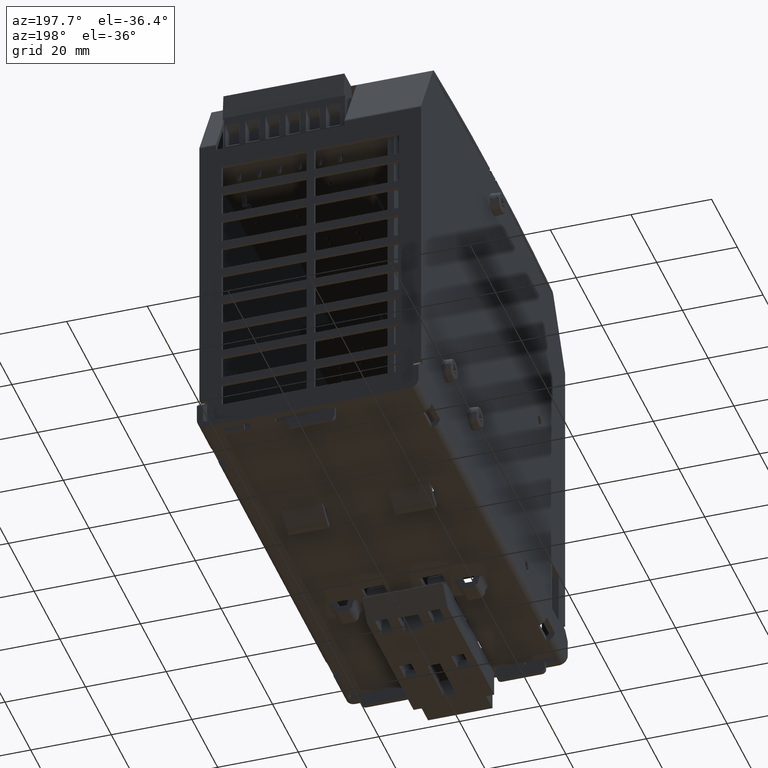
[diagram: clean part render]
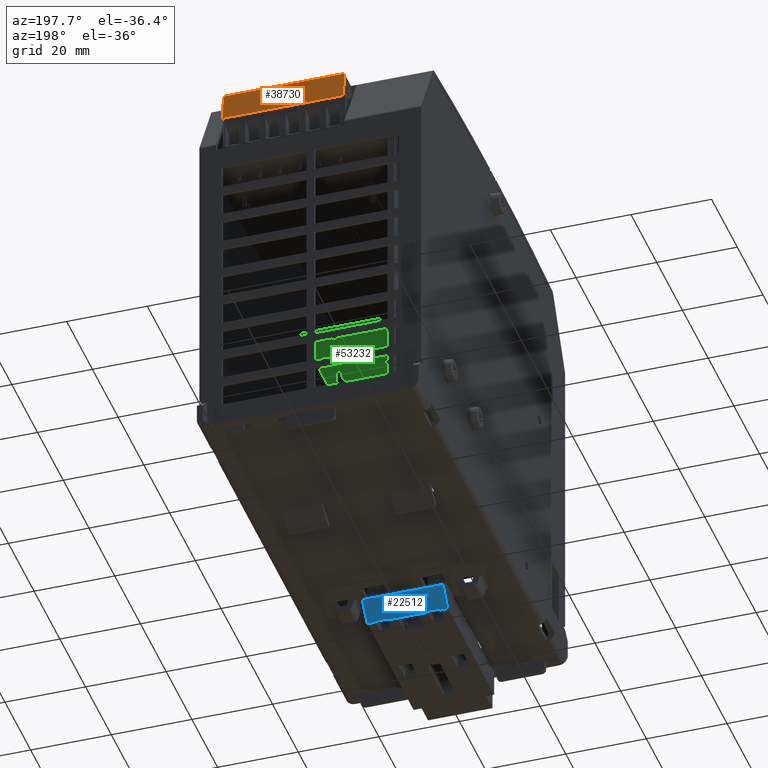
[diagram: same view with three faces highlighted in distinct colors, each labeled with its STEP entity id]
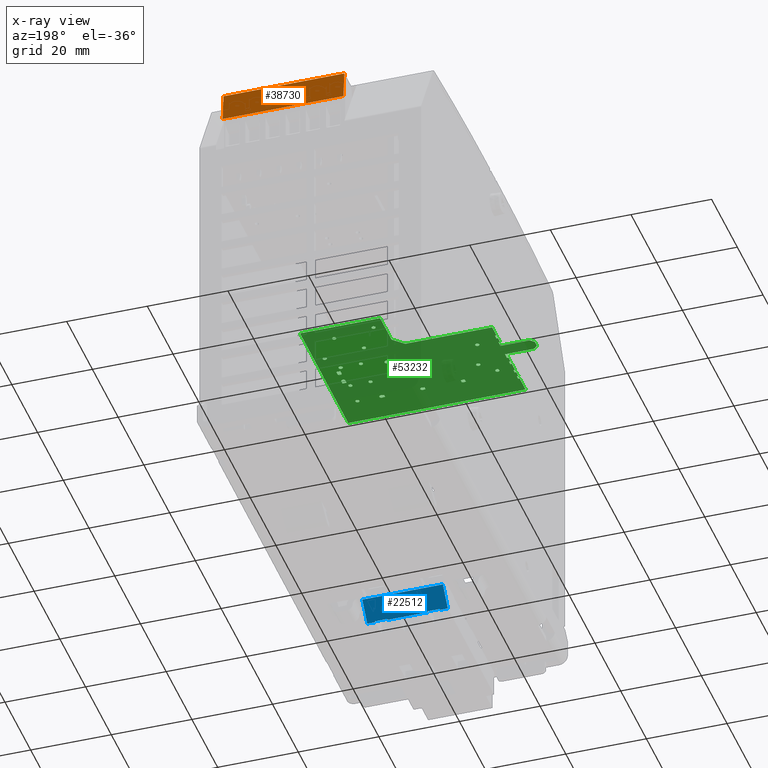
[diagram: x-ray of the same camera — body ghosted, the three highlighted faces saturated]
A machine part, auxiliary view with three faces highlighted in distinct colors.
The next image is the same camera in x-ray (body ghosted, the three faces saturated) — at least one of them is partly hidden behind the body in this view.
Their STEP definitions:

[orange] entity #38730 — the highlighted planar face has unit normal (0, 0.9962, 0.0872).
#29926=CARTESIAN_POINT('',(-0.274338582677101,2.022410649171889,3.980732283464571));
#29927=VERTEX_POINT('',#29926);
#29934=CARTESIAN_POINT('',(-0.274338582677101,2.046866141732283,3.701204724409452));
#29935=VERTEX_POINT('',#29934);
#29936=CARTESIAN_POINT('',(-0.274338582677101,2.022410649171889,3.980732283464571));
#29937=DIRECTION('',(0.0,0.087155742747651,-0.996194698091746));
#29938=VECTOR('',#29937,0.280595308919597);
#29939=LINE('',#29936,#29938);
#29940=EDGE_CURVE('',#29927,#29935,#29939,.T.);
#33165=CARTESIAN_POINT('',(0.887078740157544,2.046866141732282,3.701204724409452));
#33166=VERTEX_POINT('',#33165);
#33167=CARTESIAN_POINT('',(-0.274338582677101,2.046866141732282,3.701204724409452));
#33168=DIRECTION('',(1.0,0.0,0.0));
#33169=VECTOR('',#33168,1.161417322834645);
#33170=LINE('',#33167,#33169);
#33171=EDGE_CURVE('',#29935,#33166,#33170,.T.);
#38533=CARTESIAN_POINT('',(0.906763779527623,2.046866141732282,3.701204724409452));
#38534=VERTEX_POINT('',#38533);
#38541=CARTESIAN_POINT('',(0.906763779527623,2.022410649171889,3.980732283464569));
#38542=VERTEX_POINT('',#38541);
#38543=CARTESIAN_POINT('',(0.906763779527623,2.022410649171889,3.980732283464569));
#38544=DIRECTION('',(0.0,0.087155742747651,-0.996194698091746));
#38545=VECTOR('',#38544,0.280595308919597);
#38546=LINE('',#38543,#38545);
#38547=EDGE_CURVE('',#38542,#38534,#38546,.T.);
#38689=CARTESIAN_POINT('',(0.906763779527623,2.046866141732282,3.701204724409452));
#38690=DIRECTION('',(-1.0,0.0,0.0));
#38691=VECTOR('',#38690,0.019685039370079);
#38692=LINE('',#38689,#38691);
#38693=EDGE_CURVE('',#38534,#33166,#38692,.T.);
#38713=CARTESIAN_POINT('',(0.906763779527623,2.046866141732282,3.701204724409452));
#38714=DIRECTION('',(0.0,0.996194698091745,0.087155742747664));
#38715=DIRECTION('',(-1.0,0.0,0.0));
#38716=AXIS2_PLACEMENT_3D('',#38713,#38714,#38715);
#38717=PLANE('',#38716);
#38718=ORIENTED_EDGE('',*,*,#38693,.T.);
#38719=ORIENTED_EDGE('',*,*,#33171,.F.);
#38720=ORIENTED_EDGE('',*,*,#29940,.F.);
#38721=CARTESIAN_POINT('',(-0.274338582677101,2.022410649171889,3.980732283464569));
#38722=DIRECTION('',(1.0,0.0,0.0));
#38723=VECTOR('',#38722,1.181102362204725);
#38724=LINE('',#38721,#38723);
#38725=EDGE_CURVE('',#29927,#38542,#38724,.T.);
#38726=ORIENTED_EDGE('',*,*,#38725,.T.);
#38727=ORIENTED_EDGE('',*,*,#38547,.T.);
#38728=EDGE_LOOP('',(#38718,#38719,#38720,#38726,#38727));
#38729=FACE_OUTER_BOUND('',#38728,.T.);
#38730=ADVANCED_FACE('',(#38729),#38717,.T.);

[blue] entity #22512 — the highlighted planar face has unit normal (0, -0.7431, 0.6691).
#21663=CARTESIAN_POINT('',(0.393700787401574,-0.773622047244094,-0.267716535433069));
#21664=VERTEX_POINT('',#21663);
#21671=CARTESIAN_POINT('',(0.393700787401574,-0.62007874015748,-0.097189417014413));
#21672=VERTEX_POINT('',#21671);
#21673=CARTESIAN_POINT('',(0.393700787401574,-0.773622047244094,-0.267716535433069));
#21674=DIRECTION('',(0.0,0.669130606358859,0.743144825477394));
#21675=VECTOR('',#21674,0.229466871829606);
#21676=LINE('',#21673,#21675);
#21677=EDGE_CURVE('',#21664,#21672,#21676,.T.);
#21992=CARTESIAN_POINT('',(-0.393700787401576,-0.62007874015748,-0.097189417014413));
#21993=VERTEX_POINT('',#21992);
#22001=CARTESIAN_POINT('',(-0.393700787401576,-0.773622047244094,-0.267716535433069));
#22002=VERTEX_POINT('',#22001);
#22003=CARTESIAN_POINT('',(-0.393700787401576,-0.62007874015748,-0.097189417014413));
#22004=DIRECTION('',(0.0,-0.669130606358859,-0.743144825477394));
#22005=VECTOR('',#22004,0.229466871829606);
#22006=LINE('',#22003,#22005);
#22007=EDGE_CURVE('',#21993,#22002,#22006,.T.);
#22423=CARTESIAN_POINT('',(0.393700787401574,-0.62007874015748,-0.097189417014413));
#22424=DIRECTION('',(-1.0,0.0,0.0));
#22425=VECTOR('',#22424,0.78740157480315);
#22426=LINE('',#22423,#22425);
#22427=EDGE_CURVE('',#21672,#21993,#22426,.T.);
#22432=CARTESIAN_POINT('',(0.393700787401574,-0.62007874015748,-0.097189417014413));
#22433=DIRECTION('',(5.500377E-017,-0.743144825477395,0.669130606358858));
#22434=DIRECTION('',(0.0,0.669130606358858,0.743144825477395));
#22435=AXIS2_PLACEMENT_3D('',#22432,#22433,#22434);
#22436=PLANE('',#22435);
#22437=CARTESIAN_POINT('',(-0.196850393700789,-0.76771653543307,-0.261157800109275));
#22438=VERTEX_POINT('',#22437);
#22439=CARTESIAN_POINT('',(-0.196850393700789,-0.773622047244094,-0.267716535433069));
#22440=VERTEX_POINT('',#22439);
#22441=CARTESIAN_POINT('',(-0.196850393700789,-0.76771653543307,-0.261157800109275));
#22442=DIRECTION('',(0.0,-0.669130606358885,-0.74314482547737));
#22443=VECTOR('',#22442,0.008825648916523);
#22444=LINE('',#22441,#22443);
#22445=EDGE_CURVE('',#22438,#22440,#22444,.T.);
#22446=ORIENTED_EDGE('',*,*,#22445,.F.);
#22447=CARTESIAN_POINT('',(-0.314960629921261,-0.76771653543307,-0.261157800109274));
#22448=VERTEX_POINT('',#22447);
#22449=CARTESIAN_POINT('',(-0.314960629921261,-0.76771653543307,-0.261157800109274));
#22450=DIRECTION('',(1.0,0.0,0.0));
#22451=VECTOR('',#22450,0.118110236220472);
#22452=LINE('',#22449,#22451);
#22453=EDGE_CURVE('',#22448,#22438,#22452,.T.);
#22454=ORIENTED_EDGE('',*,*,#22453,.F.);
#22455=CARTESIAN_POINT('',(-0.314960629921261,-0.773622047244094,-0.267716535433069));
#22456=VERTEX_POINT('',#22455);
#22457=CARTESIAN_POINT('',(-0.314960629921261,-0.773622047244094,-0.267716535433069));
#22458=DIRECTION('',(0.0,0.669130606358879,0.743144825477375));
#22459=VECTOR('',#22458,0.008825648916523);
#22460=LINE('',#22457,#22459);
#22461=EDGE_CURVE('',#22456,#22448,#22460,.T.);
#22462=ORIENTED_EDGE('',*,*,#22461,.F.);
#22463=CARTESIAN_POINT('',(-0.393700787401576,-0.773622047244094,-0.267716535433069));
#22464=DIRECTION('',(1.0,0.0,0.0));
#22465=VECTOR('',#22464,0.078740157480315);
#22466=LINE('',#22463,#22465);
#22467=EDGE_CURVE('',#22002,#22456,#22466,.T.);
#22468=ORIENTED_EDGE('',*,*,#22467,.F.);
#22469=ORIENTED_EDGE('',*,*,#22007,.F.);
#22470=ORIENTED_EDGE('',*,*,#22427,.F.);
#22471=ORIENTED_EDGE('',*,*,#21677,.F.);
#22472=CARTESIAN_POINT('',(0.314960629921259,-0.773622047244094,-0.267716535433069));
#22473=VERTEX_POINT('',#22472);
#22474=CARTESIAN_POINT('',(0.314960629921259,-0.773622047244094,-0.267716535433069));
#22475=DIRECTION('',(1.0,0.0,0.0));
#22476=VECTOR('',#22475,0.078740157480315);
#22477=LINE('',#22474,#22476);
#22478=EDGE_CURVE('',#22473,#21664,#22477,.T.);
#22479=ORIENTED_EDGE('',*,*,#22478,.F.);
#22480=CARTESIAN_POINT('',(0.314960629921259,-0.76771653543307,-0.261157800109275));
#22481=VERTEX_POINT('',#22480);
#22482=CARTESIAN_POINT('',(0.314960629921259,-0.76771653543307,-0.261157800109275));
#22483=DIRECTION('',(0.0,-0.669130606358895,-0.743144825477361));
#22484=VECTOR('',#22483,0.008825648916523);
#22485=LINE('',#22482,#22484);
#22486=EDGE_CURVE('',#22481,#22473,#22485,.T.);
#22487=ORIENTED_EDGE('',*,*,#22486,.F.);
#22488=CARTESIAN_POINT('',(0.196850393700786,-0.76771653543307,-0.261157800109275));
#22489=VERTEX_POINT('',#22488);
#22490=CARTESIAN_POINT('',(0.196850393700786,-0.76771653543307,-0.261157800109275));
#22491=DIRECTION('',(1.0,0.0,0.0));
#22492=VECTOR('',#22491,0.118110236220472);
#22493=LINE('',#22490,#22492);
#22494=EDGE_CURVE('',#22489,#22481,#22493,.T.);
#22495=ORIENTED_EDGE('',*,*,#22494,.F.);
#22496=CARTESIAN_POINT('',(0.196850393700786,-0.773622047244094,-0.267716535433069));
#22497=VERTEX_POINT('',#22496);
#22498=CARTESIAN_POINT('',(0.196850393700786,-0.773622047244094,-0.267716535433069));
#22499=DIRECTION('',(0.0,0.669130606358895,0.743144825477361));
#22500=VECTOR('',#22499,0.008825648916523);
#22501=LINE('',#22498,#22500);
#22502=EDGE_CURVE('',#22497,#22489,#22501,.T.);
#22503=ORIENTED_EDGE('',*,*,#22502,.F.);
#22504=CARTESIAN_POINT('',(-0.196850393700789,-0.773622047244094,-0.267716535433069));
#22505=DIRECTION('',(1.0,0.0,0.0));
#22506=VECTOR('',#22505,0.393700787401575);
#22507=LINE('',#22504,#22506);
#22508=EDGE_CURVE('',#22440,#22497,#22507,.T.);
#22509=ORIENTED_EDGE('',*,*,#22508,.F.);
#22510=EDGE_LOOP('',(#22446,#22454,#22462,#22468,#22469,#22470,#22471,#22479,#22487,#22495,#22503,#22509));
#22511=FACE_OUTER_BOUND('',#22510,.T.);
#22512=ADVANCED_FACE('',(#22511),#22436,.F.);

[green] entity #53232 — the highlighted planar face has unit normal (0, 0, 1).
#44014=CARTESIAN_POINT('',(-0.208972440944817,-1.845496062992127,3.169708661417326));
#44015=VERTEX_POINT('',#44014);
#44016=CARTESIAN_POINT('',(-0.216846456692848,-1.845496062992127,3.169708661417326));
#44017=VERTEX_POINT('',#44016);
#44018=CARTESIAN_POINT('',(-0.208972440944817,-1.845496062992127,3.169708661417326));
#44019=DIRECTION('',(-1.0,0.0,0.0));
#44020=VECTOR('',#44019,0.007874015748032);
#44021=LINE('',#44018,#44020);
#44022=EDGE_CURVE('',#44015,#44017,#44021,.T.);
#44063=CARTESIAN_POINT('',(-0.185350393700722,-1.845496062992127,3.169708661417326));
#44064=VERTEX_POINT('',#44063);
#44071=CARTESIAN_POINT('',(-0.177476377952691,-1.845496062992127,3.169708661417326));
#44072=VERTEX_POINT('',#44071);
#44073=CARTESIAN_POINT('',(-0.177476377952691,-1.845496062992127,3.169708661417326));
#44074=DIRECTION('',(-1.0,0.0,0.0));
#44075=VECTOR('',#44074,0.007874015748031);
#44076=LINE('',#44073,#44075);
#44077=EDGE_CURVE('',#44072,#44064,#44076,.T.);
#44156=CARTESIAN_POINT('',(-0.177476377952691,-1.876992125984253,3.169708661417326));
#44157=VERTEX_POINT('',#44156);
#44158=CARTESIAN_POINT('',(-0.177476377952691,-1.876992125984253,3.169708661417326));
#44159=DIRECTION('',(0.0,1.0,0.0));
#44160=VECTOR('',#44159,0.031496062992126);
#44161=LINE('',#44158,#44160);
#44162=EDGE_CURVE('',#44157,#44072,#44161,.T.);
#44227=CARTESIAN_POINT('',(0.176854330708727,-1.845496062992127,3.169708661417326));
#44228=VERTEX_POINT('',#44227);
#44229=CARTESIAN_POINT('',(0.176854330708727,-1.876992125984253,3.169708661417326));
#44230=VERTEX_POINT('',#44229);
#44231=CARTESIAN_POINT('',(0.176854330708727,-1.845496062992126,3.169708661417326));
#44232=DIRECTION('',(0.0,-1.0,0.0));
#44233=VECTOR('',#44232,0.031496062992126);
#44234=LINE('',#44231,#44233);
#44235=EDGE_CURVE('',#44228,#44230,#44234,.T.);
#44267=CARTESIAN_POINT('',(0.191027559055183,-1.845496062992127,3.169708661417326));
#44268=VERTEX_POINT('',#44267);
#44269=CARTESIAN_POINT('',(0.191027559055183,-1.845496062992127,3.169708661417326));
#44270=DIRECTION('',(-1.0,0.0,0.0));
#44271=VECTOR('',#44270,0.014173228346456);
#44272=LINE('',#44269,#44271);
#44273=EDGE_CURVE('',#44268,#44228,#44272,.T.);
#44314=CARTESIAN_POINT('',(0.214649606299277,-1.845496062992127,3.169708661417326));
#44315=VERTEX_POINT('',#44314);
#44322=CARTESIAN_POINT('',(0.216224409448884,-1.845496062992127,3.169708661417326));
#44323=VERTEX_POINT('',#44322);
#44324=CARTESIAN_POINT('',(0.216224409448884,-1.845496062992127,3.169708661417326));
#44325=DIRECTION('',(-1.0,0.0,0.0));
#44326=VECTOR('',#44325,0.001574803149607);
#44327=LINE('',#44324,#44326);
#44328=EDGE_CURVE('',#44323,#44315,#44327,.T.);
#44369=CARTESIAN_POINT('',(0.216224409448884,-1.846810785212739,3.169708661417326));
#44370=VERTEX_POINT('',#44369);
#44371=CARTESIAN_POINT('',(0.216224409448884,-1.846810785212739,3.169708661417326));
#44372=DIRECTION('',(0.0,1.0,0.0));
#44373=VECTOR('',#44372,0.001314722220612);
#44374=LINE('',#44371,#44373);
#44375=EDGE_CURVE('',#44370,#44323,#44374,.T.);
#44416=CARTESIAN_POINT('',(0.216224409448884,-1.875677403763641,3.169708661417326));
#44417=VERTEX_POINT('',#44416);
#44424=CARTESIAN_POINT('',(0.216224409448884,-1.876992125984253,3.169708661417326));
#44425=VERTEX_POINT('',#44424);
#44426=CARTESIAN_POINT('',(0.216224409448884,-1.876992125984253,3.169708661417326));
#44427=DIRECTION('',(0.0,1.0,0.0));
#44428=VECTOR('',#44427,0.001314722220612);
#44429=LINE('',#44426,#44428);
#44430=EDGE_CURVE('',#44425,#44417,#44429,.T.);
#44455=CARTESIAN_POINT('',(0.591027559055184,-1.845496062992127,3.169708661417326));
#44456=VERTEX_POINT('',#44455);
#44457=CARTESIAN_POINT('',(0.570555118110301,-1.845496062992127,3.169708661417326));
#44458=VERTEX_POINT('',#44457);
#44459=CARTESIAN_POINT('',(0.591027559055184,-1.845496062992127,3.169708661417326));
#44460=DIRECTION('',(-1.0,0.0,0.0));
#44461=VECTOR('',#44460,0.020472440944883);
#44462=LINE('',#44459,#44461);
#44463=EDGE_CURVE('',#44456,#44458,#44462,.T.);
#44574=CARTESIAN_POINT('',(0.570555118110301,-1.876992125984253,3.169708661417326));
#44575=VERTEX_POINT('',#44574);
#44576=CARTESIAN_POINT('',(0.570555118110301,-1.845496062992126,3.169708661417326));
#44577=DIRECTION('',(0.0,-1.0,0.0));
#44578=VECTOR('',#44577,0.031496062992126);
#44579=LINE('',#44576,#44578);
#44580=EDGE_CURVE('',#44458,#44575,#44579,.T.);
#48250=CARTESIAN_POINT('',(-0.216846456692848,-1.876992125984253,3.169708661417326));
#48251=VERTEX_POINT('',#48250);
#48252=CARTESIAN_POINT('',(-0.216846456692848,-1.845496062992126,3.169708661417326));
#48253=DIRECTION('',(0.0,-1.0,0.0));
#48254=VECTOR('',#48253,0.031496062992126);
#48255=LINE('',#48252,#48254);
#48256=EDGE_CURVE('',#44017,#48251,#48255,.T.);
#48281=CARTESIAN_POINT('',(-0.208972440944817,-1.876992125984253,3.169708661417326));
#48282=VERTEX_POINT('',#48281);
#48283=CARTESIAN_POINT('',(-0.216846456692849,-1.876992125984253,3.169708661417326));
#48284=DIRECTION('',(1.0,0.0,0.0));
#48285=VECTOR('',#48284,0.007874015748032);
#48286=LINE('',#48283,#48285);
#48287=EDGE_CURVE('',#48251,#48282,#48286,.T.);
#48313=CARTESIAN_POINT('',(-0.185350393700722,-1.876992125984253,3.169708661417326));
#48314=VERTEX_POINT('',#48313);
#48315=CARTESIAN_POINT('',(-0.185350393700722,-1.876992125984253,3.169708661417326));
#48316=DIRECTION('',(1.0,0.0,0.0));
#48317=VECTOR('',#48316,0.007874015748031);
#48318=LINE('',#48315,#48317);
#48319=EDGE_CURVE('',#48314,#44157,#48318,.T.);
#48446=CARTESIAN_POINT('',(0.191027559055183,-1.876992125984253,3.169708661417326));
#48447=VERTEX_POINT('',#48446);
#48448=CARTESIAN_POINT('',(0.176854330708727,-1.876992125984253,3.169708661417326));
#48449=DIRECTION('',(1.0,0.0,0.0));
#48450=VECTOR('',#48449,0.014173228346456);
#48451=LINE('',#48448,#48450);
#48452=EDGE_CURVE('',#44230,#48447,#48451,.T.);
#48478=CARTESIAN_POINT('',(0.214649606299277,-1.876992125984253,3.169708661417326));
#48479=VERTEX_POINT('',#48478);
#48480=CARTESIAN_POINT('',(0.214649606299277,-1.876992125984253,3.169708661417326));
#48481=DIRECTION('',(1.0,0.0,0.0));
#48482=VECTOR('',#48481,0.001574803149607);
#48483=LINE('',#48480,#48482);
#48484=EDGE_CURVE('',#48479,#44425,#48483,.T.);
#48618=CARTESIAN_POINT('',(0.591027559055184,-1.876992125984253,3.169708661417326));
#48619=VERTEX_POINT('',#48618);
#48620=CARTESIAN_POINT('',(0.570555118110301,-1.876992125984253,3.169708661417326));
#48621=DIRECTION('',(1.0,0.0,0.0));
#48622=VECTOR('',#48621,0.020472440944883);
#48623=LINE('',#48620,#48622);
#48624=EDGE_CURVE('',#44575,#48619,#48623,.T.);
#52602=CARTESIAN_POINT('',(-0.19716141732277,-1.86124409448819,3.169708661417326));
#52603=DIRECTION('',(0.0,0.0,1.0));
#52604=DIRECTION('',(1.0,0.0,0.0));
#52605=AXIS2_PLACEMENT_3D('',#52602,#52603,#52604);
#52606=CIRCLE('',#52605,0.019685039370079);
#52607=EDGE_CURVE('',#48282,#48314,#52606,.T.);
#52618=CARTESIAN_POINT('',(0.20283858267723,-1.86124409448819,3.169708661417326));
#52619=DIRECTION('',(0.0,0.0,1.0));
#52620=DIRECTION('',(1.0,0.0,0.0));
#52621=AXIS2_PLACEMENT_3D('',#52618,#52619,#52620);
#52622=CIRCLE('',#52621,0.019685039370079);
#52623=EDGE_CURVE('',#44417,#44370,#52622,.T.);
#52642=CARTESIAN_POINT('',(0.20283858267723,-1.86124409448819,3.169708661417326));
#52643=DIRECTION('',(0.0,0.0,1.0));
#52644=DIRECTION('',(1.0,0.0,0.0));
#52645=AXIS2_PLACEMENT_3D('',#52642,#52643,#52644);
#52646=CIRCLE('',#52645,0.019685039370079);
#52647=EDGE_CURVE('',#44315,#44268,#52646,.T.);
#52674=CARTESIAN_POINT('',(0.20283858267723,-1.86124409448819,3.169708661417326));
#52675=DIRECTION('',(0.0,0.0,1.0));
#52676=DIRECTION('',(1.0,0.0,0.0));
#52677=AXIS2_PLACEMENT_3D('',#52674,#52675,#52676);
#52678=CIRCLE('',#52677,0.019685039370079);
#52679=EDGE_CURVE('',#48447,#48479,#52678,.T.);
#52684=CARTESIAN_POINT('',(0.009123898659451,-1.51659172102567,3.169708661417326));
#52685=DIRECTION('',(0.0,0.0,1.0));
#52686=DIRECTION('',(1.0,0.0,0.0));
#52687=AXIS2_PLACEMENT_3D('',#52684,#52685,#52686);
#52688=PLANE('',#52687);
#52689=CARTESIAN_POINT('',(-0.70866141732277,-1.31924409448819,3.169708661417326));
#52690=VERTEX_POINT('',#52689);
#52691=CARTESIAN_POINT('',(-0.70866141732277,-1.38224409448819,3.169708661417326));
#52692=VERTEX_POINT('',#52691);
#52693=CARTESIAN_POINT('',(-0.70866141732277,-1.31924409448819,3.169708661417326));
#52694=DIRECTION('',(0.0,-1.0,0.0));
#52695=VECTOR('',#52694,0.063);
#52696=LINE('',#52693,#52695);
#52697=EDGE_CURVE('',#52690,#52692,#52696,.T.);
#52698=ORIENTED_EDGE('',*,*,#52697,.F.);
#52699=CARTESIAN_POINT('',(-0.69366141732277,-1.31924409448819,3.169708661417326));
#52700=VERTEX_POINT('',#52699);
#52701=CARTESIAN_POINT('',(-0.69366141732277,-1.31924409448819,3.169708661417326));
#52702=DIRECTION('',(-1.0,0.0,0.0));
#52703=VECTOR('',#52702,0.015);
#52704=LINE('',#52701,#52703);
#52705=EDGE_CURVE('',#52700,#52690,#52704,.T.);
#52706=ORIENTED_EDGE('',*,*,#52705,.F.);
#52707=CARTESIAN_POINT('',(-0.69366141732277,-1.27624409448819,3.169708661417326));
#52708=VERTEX_POINT('',#52707);
#52709=CARTESIAN_POINT('',(-0.69366141732277,-1.27624409448819,3.169708661417326));
#52710=DIRECTION('',(0.0,-1.0,0.0));
#52711=VECTOR('',#52710,0.043);
#52712=LINE('',#52709,#52711);
#52713=EDGE_CURVE('',#52708,#52700,#52712,.T.);
#52714=ORIENTED_EDGE('',*,*,#52713,.F.);
#52715=CARTESIAN_POINT('',(-0.70866141732277,-1.27624409448819,3.169708661417326));
#52716=VERTEX_POINT('',#52715);
#52717=CARTESIAN_POINT('',(-0.70866141732277,-1.27624409448819,3.169708661417326));
#52718=DIRECTION('',(1.0,0.0,0.0));
#52719=VECTOR('',#52718,0.015);
#52720=LINE('',#52717,#52719);
#52721=EDGE_CURVE('',#52716,#52708,#52720,.T.);
#52722=ORIENTED_EDGE('',*,*,#52721,.F.);
#52723=CARTESIAN_POINT('',(-0.70866141732277,-1.141244094488189,3.169708661417326));
#52724=VERTEX_POINT('',#52723);
#52725=CARTESIAN_POINT('',(-0.70866141732277,-1.141244094488189,3.169708661417326));
#52726=DIRECTION('',(0.0,-1.0,0.0));
#52727=VECTOR('',#52726,0.135);
#52728=LINE('',#52725,#52727);
#52729=EDGE_CURVE('',#52724,#52716,#52728,.T.);
#52730=ORIENTED_EDGE('',*,*,#52729,.F.);
#52731=CARTESIAN_POINT('',(0.14033858267723,-1.141244094488189,3.169708661417326));
#52732=VERTEX_POINT('',#52731);
#52733=CARTESIAN_POINT('',(0.14033858267723,-1.141244094488189,3.169708661417326));
#52734=DIRECTION('',(-1.0,0.0,0.0));
#52735=VECTOR('',#52734,0.849);
#52736=LINE('',#52733,#52735);
#52737=EDGE_CURVE('',#52732,#52724,#52736,.T.);
#52738=ORIENTED_EDGE('',*,*,#52737,.F.);
#52739=CARTESIAN_POINT('',(0.24133858267723,-1.040244094488189,3.169708661417326));
#52740=VERTEX_POINT('',#52739);
#52741=CARTESIAN_POINT('',(0.24133858267723,-1.040244094488189,3.169708661417326));
#52742=DIRECTION('',(-0.707106781186546,-0.707106781186549,0.0));
#52743=VECTOR('',#52742,0.142835569799683);
#52744=LINE('',#52741,#52743);
#52745=EDGE_CURVE('',#52740,#52732,#52744,.T.);
#52746=ORIENTED_EDGE('',*,*,#52745,.F.);
#52747=CARTESIAN_POINT('',(0.24133858267723,-0.68824409448819,3.169708661417326));
#52748=VERTEX_POINT('',#52747);
#52749=CARTESIAN_POINT('',(0.24133858267723,-0.68824409448819,3.169708661417326));
#52750=DIRECTION('',(0.0,-1.0,0.0));
#52751=VECTOR('',#52750,0.351999999999999);
#52752=LINE('',#52749,#52751);
#52753=EDGE_CURVE('',#52748,#52740,#52752,.T.);
#52754=ORIENTED_EDGE('',*,*,#52753,.F.);
#52755=CARTESIAN_POINT('',(1.023338582677231,-0.68824409448819,3.169708661417326));
#52756=VERTEX_POINT('',#52755);
#52757=CARTESIAN_POINT('',(1.023338582677231,-0.68824409448819,3.169708661417326));
#52758=DIRECTION('',(-1.0,0.0,0.0));
#52759=VECTOR('',#52758,0.782);
#52760=LINE('',#52757,#52759);
#52761=EDGE_CURVE('',#52756,#52748,#52760,.T.);
#52762=ORIENTED_EDGE('',*,*,#52761,.F.);
#52763=CARTESIAN_POINT('',(1.023338582677231,-2.164244094488189,3.169708661417326));
#52764=VERTEX_POINT('',#52763);
#52765=CARTESIAN_POINT('',(1.023338582677231,-2.164244094488189,3.169708661417326));
#52766=DIRECTION('',(0.0,1.0,0.0));
#52767=VECTOR('',#52766,1.475999999999999);
#52768=LINE('',#52765,#52767);
#52769=EDGE_CURVE('',#52764,#52756,#52768,.T.);
#52770=ORIENTED_EDGE('',*,*,#52769,.F.);
#52771=CARTESIAN_POINT('',(-0.70866141732277,-2.164244094488189,3.169708661417326));
#52772=VERTEX_POINT('',#52771);
#52773=CARTESIAN_POINT('',(-0.70866141732277,-2.164244094488189,3.169708661417326));
#52774=DIRECTION('',(1.0,0.0,0.0));
#52775=VECTOR('',#52774,1.732);
#52776=LINE('',#52773,#52775);
#52777=EDGE_CURVE('',#52772,#52764,#52776,.T.);
#52778=ORIENTED_EDGE('',*,*,#52777,.F.);
#52779=CARTESIAN_POINT('',(-0.70866141732277,-2.059102362204726,3.169708661417326));
#52780=VERTEX_POINT('',#52779);
#52781=CARTESIAN_POINT('',(-0.70866141732277,-2.059102362204726,3.169708661417326));
#52782=DIRECTION('',(0.0,-1.0,0.0));
#52783=VECTOR('',#52782,0.105141732283464);
#52784=LINE('',#52781,#52783);
#52785=EDGE_CURVE('',#52780,#52772,#52784,.T.);
#52786=ORIENTED_EDGE('',*,*,#52785,.F.);
#52787=CARTESIAN_POINT('',(-0.70866141732277,-1.98324409448819,3.169708661417326));
#52788=VERTEX_POINT('',#52787);
#52789=CARTESIAN_POINT('',(-0.70866141732277,-1.98324409448819,3.169708661417326));
#52790=DIRECTION('',(0.0,-1.0,0.0));
#52791=VECTOR('',#52790,0.075858267716536);
#52792=LINE('',#52789,#52791);
#52793=EDGE_CURVE('',#52788,#52780,#52792,.T.);
#52794=ORIENTED_EDGE('',*,*,#52793,.F.);
#52795=CARTESIAN_POINT('',(-0.69366141732277,-1.98324409448819,3.169708661417326));
#52796=VERTEX_POINT('',#52795);
#52797=CARTESIAN_POINT('',(-0.69366141732277,-1.98324409448819,3.169708661417326));
#52798=DIRECTION('',(-1.0,0.0,0.0));
#52799=VECTOR('',#52798,0.015);
#52800=LINE('',#52797,#52799);
#52801=EDGE_CURVE('',#52796,#52788,#52800,.T.);
#52802=ORIENTED_EDGE('',*,*,#52801,.F.);
#52803=CARTESIAN_POINT('',(-0.69366141732277,-1.942244094488189,3.169708661417326));
#52804=VERTEX_POINT('',#52803);
#52805=CARTESIAN_POINT('',(-0.69366141732277,-1.942244094488189,3.169708661417326));
#52806=DIRECTION('',(0.0,-1.0,0.0));
#52807=VECTOR('',#52806,0.041);
#52808=LINE('',#52805,#52807);
#52809=EDGE_CURVE('',#52804,#52796,#52808,.T.);
#52810=ORIENTED_EDGE('',*,*,#52809,.F.);
#52811=CARTESIAN_POINT('',(-0.70866141732277,-1.942244094488189,3.169708661417326));
#52812=VERTEX_POINT('',#52811);
#52813=CARTESIAN_POINT('',(-0.70866141732277,-1.942244094488189,3.169708661417326));
#52814=DIRECTION('',(1.0,0.0,0.0));
#52815=VECTOR('',#52814,0.015);
#52816=LINE('',#52813,#52815);
#52817=EDGE_CURVE('',#52812,#52804,#52816,.T.);
#52818=ORIENTED_EDGE('',*,*,#52817,.F.);
#52819=CARTESIAN_POINT('',(-0.70866141732277,-1.87924409448819,3.169708661417326));
#52820=VERTEX_POINT('',#52819);
#52821=CARTESIAN_POINT('',(-0.70866141732277,-1.87924409448819,3.169708661417326));
#52822=DIRECTION('',(0.0,-1.0,0.0));
#52823=VECTOR('',#52822,0.063);
#52824=LINE('',#52821,#52823);
#52825=EDGE_CURVE('',#52820,#52812,#52824,.T.);
#52826=ORIENTED_EDGE('',*,*,#52825,.F.);
#52827=CARTESIAN_POINT('',(-0.69366141732277,-1.87924409448819,3.169708661417326));
#52828=VERTEX_POINT('',#52827);
#52829=CARTESIAN_POINT('',(-0.69366141732277,-1.87924409448819,3.169708661417326));
#52830=DIRECTION('',(-1.0,0.0,0.0));
#52831=VECTOR('',#52830,0.015);
#52832=LINE('',#52829,#52831);
#52833=EDGE_CURVE('',#52828,#52820,#52832,.T.);
#52834=ORIENTED_EDGE('',*,*,#52833,.F.);
#52835=CARTESIAN_POINT('',(-0.69366141732277,-1.84024409448819,3.169708661417326));
#52836=VERTEX_POINT('',#52835);
#52837=CARTESIAN_POINT('',(-0.69366141732277,-1.84024409448819,3.169708661417326));
#52838=DIRECTION('',(0.0,-1.0,0.0));
#52839=VECTOR('',#52838,0.039);
#52840=LINE('',#52837,#52839);
#52841=EDGE_CURVE('',#52836,#52828,#52840,.T.);
#52842=ORIENTED_EDGE('',*,*,#52841,.F.);
#52843=CARTESIAN_POINT('',(-0.70866141732277,-1.84024409448819,3.169708661417326));
#52844=VERTEX_POINT('',#52843);
#52845=CARTESIAN_POINT('',(-0.70866141732277,-1.84024409448819,3.169708661417326));
#52846=DIRECTION('',(1.0,0.0,0.0));
#52847=VECTOR('',#52846,0.015);
#52848=LINE('',#52845,#52847);
#52849=EDGE_CURVE('',#52844,#52836,#52848,.T.);
#52850=ORIENTED_EDGE('',*,*,#52849,.F.);
#52851=CARTESIAN_POINT('',(-0.70866141732277,-1.74224409448819,3.169708661417326));
#52852=VERTEX_POINT('',#52851);
#52853=CARTESIAN_POINT('',(-0.70866141732277,-1.74224409448819,3.169708661417326));
#52854=DIRECTION('',(0.0,-1.0,0.0));
#52855=VECTOR('',#52854,0.098);
#52856=LINE('',#52853,#52855);
#52857=EDGE_CURVE('',#52852,#52844,#52856,.T.);
#52858=ORIENTED_EDGE('',*,*,#52857,.F.);
#52859=CARTESIAN_POINT('',(-0.69366141732277,-1.74224409448819,3.169708661417326));
#52860=VERTEX_POINT('',#52859);
#52861=CARTESIAN_POINT('',(-0.69366141732277,-1.74224409448819,3.169708661417326));
#52862=DIRECTION('',(-1.0,0.0,0.0));
#52863=VECTOR('',#52862,0.015);
#52864=LINE('',#52861,#52863);
#52865=EDGE_CURVE('',#52860,#52852,#52864,.T.);
#52866=ORIENTED_EDGE('',*,*,#52865,.F.);
#52867=CARTESIAN_POINT('',(-0.69366141732277,-1.70324409448819,3.169708661417326));
#52868=VERTEX_POINT('',#52867);
#52869=CARTESIAN_POINT('',(-0.69366141732277,-1.70324409448819,3.169708661417326));
#52870=DIRECTION('',(0.0,-1.0,0.0));
#52871=VECTOR('',#52870,0.039);
#52872=LINE('',#52869,#52871);
#52873=EDGE_CURVE('',#52868,#52860,#52872,.T.);
#52874=ORIENTED_EDGE('',*,*,#52873,.F.);
#52875=CARTESIAN_POINT('',(-0.70866141732277,-1.70324409448819,3.169708661417326));
#52876=VERTEX_POINT('',#52875);
#52877=CARTESIAN_POINT('',(-0.70866141732277,-1.70324409448819,3.169708661417326));
#52878=DIRECTION('',(1.0,0.0,0.0));
#52879=VECTOR('',#52878,0.015);
#52880=LINE('',#52877,#52879);
#52881=EDGE_CURVE('',#52876,#52868,#52880,.T.);
#52882=ORIENTED_EDGE('',*,*,#52881,.F.);
#52883=CARTESIAN_POINT('',(-0.70866141732277,-1.64024409448819,3.169708661417326));
#52884=VERTEX_POINT('',#52883);
#52885=CARTESIAN_POINT('',(-0.70866141732277,-1.640244094488189,3.169708661417326));
#52886=DIRECTION('',(0.0,-1.0,0.0));
#52887=VECTOR('',#52886,0.063);
#52888=LINE('',#52885,#52887);
#52889=EDGE_CURVE('',#52884,#52876,#52888,.T.);
#52890=ORIENTED_EDGE('',*,*,#52889,.F.);
#52891=CARTESIAN_POINT('',(-0.69366141732277,-1.64024409448819,3.169708661417326));
#52892=VERTEX_POINT('',#52891);
#52893=CARTESIAN_POINT('',(-0.69366141732277,-1.64024409448819,3.169708661417326));
#52894=DIRECTION('',(-1.0,0.0,0.0));
#52895=VECTOR('',#52894,0.015);
#52896=LINE('',#52893,#52895);
#52897=EDGE_CURVE('',#52892,#52884,#52896,.T.);
#52898=ORIENTED_EDGE('',*,*,#52897,.F.);
#52899=CARTESIAN_POINT('',(-0.69366141732277,-1.58024409448819,3.169708661417326));
#52900=VERTEX_POINT('',#52899);
#52901=CARTESIAN_POINT('',(-0.69366141732277,-1.58024409448819,3.169708661417326));
#52902=DIRECTION('',(0.0,-1.0,0.0));
#52903=VECTOR('',#52902,0.06);
#52904=LINE('',#52901,#52903);
#52905=EDGE_CURVE('',#52900,#52892,#52904,.T.);
#52906=ORIENTED_EDGE('',*,*,#52905,.F.);
#52907=CARTESIAN_POINT('',(-0.97866141732277,-1.58024409448819,3.169708661417326));
#52908=VERTEX_POINT('',#52907);
#52909=CARTESIAN_POINT('',(-0.97866141732277,-1.58024409448819,3.169708661417326));
#52910=DIRECTION('',(1.0,0.0,0.0));
#52911=VECTOR('',#52910,0.285);
#52912=LINE('',#52909,#52911);
#52913=EDGE_CURVE('',#52908,#52900,#52912,.T.);
#52914=ORIENTED_EDGE('',*,*,#52913,.F.);
#52915=CARTESIAN_POINT('',(-1.01866141732277,-1.54024409448819,3.169708661417326));
#52916=VERTEX_POINT('',#52915);
#52917=CARTESIAN_POINT('',(-1.01866141732277,-1.54024409448819,3.169708661417326));
#52918=DIRECTION('',(0.707106781186548,-0.707106781186548,0.0));
#52919=VECTOR('',#52918,0.056568542494924);
#52920=LINE('',#52917,#52919);
#52921=EDGE_CURVE('',#52916,#52908,#52920,.T.);
#52922=ORIENTED_EDGE('',*,*,#52921,.F.);
#52923=CARTESIAN_POINT('',(-1.01866141732277,-1.47924409448819,3.169708661417326));
#52924=VERTEX_POINT('',#52923);
#52925=CARTESIAN_POINT('',(-1.01866141732277,-1.47924409448819,3.169708661417326));
#52926=DIRECTION('',(0.0,-1.0,0.0));
#52927=VECTOR('',#52926,0.061);
#52928=LINE('',#52925,#52927);
#52929=EDGE_CURVE('',#52924,#52916,#52928,.T.);
#52930=ORIENTED_EDGE('',*,*,#52929,.F.);
#52931=CARTESIAN_POINT('',(-0.97866141732277,-1.43924409448819,3.169708661417326));
#52932=VERTEX_POINT('',#52931);
#52933=CARTESIAN_POINT('',(-0.97866141732277,-1.43924409448819,3.169708661417326));
#52934=DIRECTION('',(-0.707106781186548,-0.707106781186548,0.0));
#52935=VECTOR('',#52934,0.056568542494924);
#52936=LINE('',#52933,#52935);
#52937=EDGE_CURVE('',#52932,#52924,#52936,.T.);
#52938=ORIENTED_EDGE('',*,*,#52937,.F.);
#52939=CARTESIAN_POINT('',(-0.69366141732277,-1.43924409448819,3.169708661417326));
#52940=VERTEX_POINT('',#52939);
#52941=CARTESIAN_POINT('',(-0.69366141732277,-1.43924409448819,3.169708661417326));
#52942=DIRECTION('',(-1.0,0.0,0.0));
#52943=VECTOR('',#52942,0.285);
#52944=LINE('',#52941,#52943);
#52945=EDGE_CURVE('',#52940,#52932,#52944,.T.);
#52946=ORIENTED_EDGE('',*,*,#52945,.F.);
#52947=CARTESIAN_POINT('',(-0.69366141732277,-1.38224409448819,3.169708661417326));
#52948=VERTEX_POINT('',#52947);
#52949=CARTESIAN_POINT('',(-0.69366141732277,-1.38224409448819,3.169708661417326));
#52950=DIRECTION('',(0.0,-1.0,0.0));
#52951=VECTOR('',#52950,0.057);
#52952=LINE('',#52949,#52951);
#52953=EDGE_CURVE('',#52948,#52940,#52952,.T.);
#52954=ORIENTED_EDGE('',*,*,#52953,.F.);
#52955=CARTESIAN_POINT('',(-0.70866141732277,-1.38224409448819,3.169708661417326));
#52956=DIRECTION('',(1.0,0.0,0.0));
#52957=VECTOR('',#52956,0.015);
#52958=LINE('',#52955,#52957);
#52959=EDGE_CURVE('',#52692,#52948,#52958,.T.);
#52960=ORIENTED_EDGE('',*,*,#52959,.F.);
#52961=EDGE_LOOP('',(#52698,#52706,#52714,#52722,#52730,#52738,#52746,#52754,#52762,#52770,#52778,#52786,#52794,#52802,#52810,#52818,#52826,#52834,#52842,#52850,#52858,#52866,#52874,#52882,#52890,#52898,#52906,#52914,#52922,#52930,#52938,#52946,#52954,#52960));
#52962=FACE_OUTER_BOUND('',#52961,.T.);
#52963=CARTESIAN_POINT('',(0.846173228346522,-1.367224284615838,3.169708661417326));
#52964=VERTEX_POINT('',#52963);
#52965=CARTESIAN_POINT('',(0.846173228346521,-1.398750769619017,3.169708661417326));
#52966=VERTEX_POINT('',#52965);
#52967=CARTESIAN_POINT('',(0.846173228346521,-1.367224284615838,3.169708661417326));
#52968=DIRECTION('',(0.0,-1.0,0.0));
#52969=VECTOR('',#52968,0.03152648500318);
#52970=LINE('',#52967,#52969);
#52971=EDGE_CURVE('',#52964,#52966,#52970,.T.);
#52972=ORIENTED_EDGE('',*,*,#52971,.T.);
#52973=CARTESIAN_POINT('',(0.884736429813317,-1.406594363355995,3.169708661417326));
#52974=VERTEX_POINT('',#52973);
#52975=CARTESIAN_POINT('',(0.865338582677231,-1.40324409448819,3.169708661417326));
#52976=DIRECTION('',(0.0,0.0,1.0));
#52977=DIRECTION('',(1.0,0.0,0.0));
#52978=AXIS2_PLACEMENT_3D('',#52975,#52976,#52977);
#52979=CIRCLE('',#52978,0.019685039370079);
#52980=EDGE_CURVE('',#52966,#52974,#52979,.T.);
#52981=ORIENTED_EDGE('',*,*,#52980,.T.);
#52982=CARTESIAN_POINT('',(0.885543307086679,-1.406594363355995,3.169708661417326));
#52983=VERTEX_POINT('',#52982);
#52984=CARTESIAN_POINT('',(0.884736429813317,-1.406594363355995,3.169708661417326));
#52985=DIRECTION('',(1.0,0.0,0.0));
#52986=VECTOR('',#52985,0.000806877273363);
#52987=LINE('',#52984,#52986);
#52988=EDGE_CURVE('',#52974,#52983,#52987,.T.);
#52989=ORIENTED_EDGE('',*,*,#52988,.T.);
#52990=CARTESIAN_POINT('',(0.885543307086679,-1.367224284615838,3.169708661417326));
#52991=VERTEX_POINT('',#52990);
#52992=CARTESIAN_POINT('',(0.885543307086679,-1.406594363355995,3.169708661417326));
#52993=DIRECTION('',(0.0,1.0,0.0));
#52994=VECTOR('',#52993,0.039370078740157);
#52995=LINE('',#52992,#52994);
#52996=EDGE_CURVE('',#52983,#52991,#52995,.T.);
#52997=ORIENTED_EDGE('',*,*,#52996,.T.);
#52998=CARTESIAN_POINT('',(0.885543307086679,-1.367224284615838,3.169708661417326));
#52999=DIRECTION('',(-1.0,0.0,0.0));
#53000=VECTOR('',#52999,0.039370078740158);
#53001=LINE('',#52998,#53000);
#53002=EDGE_CURVE('',#52991,#52964,#53001,.T.);
#53003=ORIENTED_EDGE('',*,*,#53002,.T.);
#53004=EDGE_LOOP('',(#52972,#52981,#52989,#52997,#53003));
#53005=FACE_BOUND('',#53004,.T.);
#53006=CARTESIAN_POINT('',(0.905653543307152,-1.13524409448819,3.169708661417326));
#53007=VERTEX_POINT('',#53006);
#53008=CARTESIAN_POINT('',(0.92533858267723,-1.13524409448819,3.169708661417326));
#53009=DIRECTION('',(0.0,0.0,1.0));
#53010=DIRECTION('',(1.0,0.0,0.0));
#53011=AXIS2_PLACEMENT_3D('',#53008,#53009,#53010);
#53012=CIRCLE('',#53011,0.019685039370079);
#53013=EDGE_CURVE('',#53007,#53007,#53012,.T.);
#53014=ORIENTED_EDGE('',*,*,#53013,.T.);
#53015=EDGE_LOOP('',(#53014));
#53016=FACE_BOUND('',#53015,.T.);
#53017=CARTESIAN_POINT('',(0.724653543307151,-0.85924409448819,3.169708661417326));
#53018=VERTEX_POINT('',#53017);
#53019=CARTESIAN_POINT('',(0.74433858267723,-0.85924409448819,3.169708661417326));
#53020=DIRECTION('',(0.0,0.0,1.0));
#53021=DIRECTION('',(1.0,0.0,0.0));
#53022=AXIS2_PLACEMENT_3D('',#53019,#53020,#53021);
#53023=CIRCLE('',#53022,0.019685039370079);
#53024=EDGE_CURVE('',#53018,#53018,#53023,.T.);
#53025=ORIENTED_EDGE('',*,*,#53024,.T.);
#53026=EDGE_LOOP('',(#53025));
#53027=FACE_BOUND('',#53026,.T.);
#53028=CARTESIAN_POINT('',(0.505653543307151,-1.08524409448819,3.169708661417326));
#53029=VERTEX_POINT('',#53028);
#53030=CARTESIAN_POINT('',(0.52533858267723,-1.08524409448819,3.169708661417326));
#53031=DIRECTION('',(0.0,0.0,1.0));
#53032=DIRECTION('',(1.0,0.0,0.0));
#53033=AXIS2_PLACEMENT_3D('',#53030,#53031,#53032);
#53034=CIRCLE('',#53033,0.019685039370079);
#53035=EDGE_CURVE('',#53029,#53029,#53034,.T.);
#53036=ORIENTED_EDGE('',*,*,#53035,.T.);
#53037=EDGE_LOOP('',(#53036));
#53038=FACE_BOUND('',#53037,.T.);
#53039=CARTESIAN_POINT('',(0.324653543307152,-0.80924409448819,3.169708661417326));
#53040=VERTEX_POINT('',#53039);
#53041=CARTESIAN_POINT('',(0.34433858267723,-0.80924409448819,3.169708661417326));
#53042=DIRECTION('',(0.0,0.0,1.0));
#53043=DIRECTION('',(1.0,0.0,0.0));
#53044=AXIS2_PLACEMENT_3D('',#53041,#53042,#53043);
#53045=CIRCLE('',#53044,0.019685039370079);
#53046=EDGE_CURVE('',#53040,#53040,#53045,.T.);
#53047=ORIENTED_EDGE('',*,*,#53046,.T.);
#53048=EDGE_LOOP('',(#53047));
#53049=FACE_BOUND('',#53048,.T.);
#53050=CARTESIAN_POINT('',(-0.513346456692849,-1.36024409448819,3.169708661417326));
#53051=VERTEX_POINT('',#53050);
#53052=CARTESIAN_POINT('',(-0.49366141732277,-1.36024409448819,3.169708661417326));
#53053=DIRECTION('',(0.0,0.0,1.0));
#53054=DIRECTION('',(1.0,0.0,0.0));
#53055=AXIS2_PLACEMENT_3D('',#53052,#53053,#53054);
#53056=CIRCLE('',#53055,0.019685039370079);
#53057=EDGE_CURVE('',#53051,#53051,#53056,.T.);
#53058=ORIENTED_EDGE('',*,*,#53057,.T.);
#53059=EDGE_LOOP('',(#53058));
#53060=FACE_BOUND('',#53059,.T.);
#53061=CARTESIAN_POINT('',(0.372653543307151,-1.36024409448819,3.169708661417326));
#53062=VERTEX_POINT('',#53061);
#53063=CARTESIAN_POINT('',(0.39233858267723,-1.36024409448819,3.169708661417326));
#53064=DIRECTION('',(0.0,0.0,1.0));
#53065=DIRECTION('',(1.0,0.0,0.0));
#53066=AXIS2_PLACEMENT_3D('',#53063,#53064,#53065);
#53067=CIRCLE('',#53066,0.019685039370079);
#53068=EDGE_CURVE('',#53062,#53062,#53067,.T.);
#53069=ORIENTED_EDGE('',*,*,#53068,.T.);
#53070=EDGE_LOOP('',(#53069));
#53071=FACE_BOUND('',#53070,.T.);
#53072=CARTESIAN_POINT('',(0.608653543307152,-1.31424409448819,3.169708661417326));
#53073=VERTEX_POINT('',#53072);
#53074=CARTESIAN_POINT('',(0.628338582677231,-1.31424409448819,3.169708661417326));
#53075=DIRECTION('',(0.0,0.0,1.0));
#53076=DIRECTION('',(1.0,0.0,0.0));
#53077=AXIS2_PLACEMENT_3D('',#53074,#53075,#53076);
#53078=CIRCLE('',#53077,0.019685039370079);
#53079=EDGE_CURVE('',#53073,#53073,#53078,.T.);
#53080=ORIENTED_EDGE('',*,*,#53079,.T.);
#53081=EDGE_LOOP('',(#53080));
#53082=FACE_BOUND('',#53081,.T.);
#53083=CARTESIAN_POINT('',(0.805653543307152,-1.31424409448819,3.169708661417326));
#53084=VERTEX_POINT('',#53083);
#53085=CARTESIAN_POINT('',(0.82533858267723,-1.31424409448819,3.169708661417326));
#53086=DIRECTION('',(0.0,0.0,1.0));
#53087=DIRECTION('',(1.0,0.0,0.0));
#53088=AXIS2_PLACEMENT_3D('',#53085,#53086,#53087);
#53089=CIRCLE('',#53088,0.019685039370079);
#53090=EDGE_CURVE('',#53084,#53084,#53089,.T.);
#53091=ORIENTED_EDGE('',*,*,#53090,.T.);
#53092=EDGE_LOOP('',(#53091));
#53093=FACE_BOUND('',#53092,.T.);
#53094=CARTESIAN_POINT('',(0.846173228346521,-1.525737419357362,3.169708661417326));
#53095=VERTEX_POINT('',#53094);
#53096=CARTESIAN_POINT('',(0.846173228346522,-1.557153668140068,3.169708661417326));
#53097=VERTEX_POINT('',#53096);
#53098=CARTESIAN_POINT('',(0.846173228346521,-1.525737419357362,3.169708661417326));
#53099=DIRECTION('',(0.0,-1.0,0.0));
#53100=VECTOR('',#53099,0.031416248782706);
#53101=LINE('',#53098,#53100);
#53102=EDGE_CURVE('',#53095,#53097,#53101,.T.);
#53103=ORIENTED_EDGE('',*,*,#53102,.T.);
#53104=CARTESIAN_POINT('',(0.885543307086679,-1.557153668140068,3.169708661417326));
#53105=VERTEX_POINT('',#53104);
#53106=CARTESIAN_POINT('',(0.846173228346522,-1.557153668140068,3.169708661417326));
#53107=DIRECTION('',(1.0,0.0,0.0));
#53108=VECTOR('',#53107,0.039370078740158);
#53109=LINE('',#53106,#53108);
#53110=EDGE_CURVE('',#53097,#53105,#53109,.T.);
#53111=ORIENTED_EDGE('',*,*,#53110,.T.);
#53112=CARTESIAN_POINT('',(0.885543307086679,-1.51778358939991,3.169708661417326));
#53113=VERTEX_POINT('',#53112);
#53114=CARTESIAN_POINT('',(0.885543307086679,-1.557153668140068,3.169708661417326));
#53115=DIRECTION('',(0.0,1.0,0.0));
#53116=VECTOR('',#53115,0.039370078740157);
#53117=LINE('',#53114,#53116);
#53118=EDGE_CURVE('',#53105,#53113,#53117,.T.);
#53119=ORIENTED_EDGE('',*,*,#53118,.T.);
#53120=CARTESIAN_POINT('',(0.884717067642148,-1.51778358939991,3.169708661417326));
#53121=VERTEX_POINT('',#53120);
#53122=CARTESIAN_POINT('',(0.885543307086679,-1.51778358939991,3.169708661417326));
#53123=DIRECTION('',(-1.0,0.0,0.0));
#53124=VECTOR('',#53123,0.000826239444531);
#53125=LINE('',#53122,#53124);
#53126=EDGE_CURVE('',#53113,#53121,#53125,.T.);
#53127=ORIENTED_EDGE('',*,*,#53126,.T.);
#53128=CARTESIAN_POINT('',(0.865338582677231,-1.521244094488189,3.169708661417326));
#53129=DIRECTION('',(0.0,0.0,1.0));
#53130=DIRECTION('',(1.0,0.0,0.0));
#53131=AXIS2_PLACEMENT_3D('',#53128,#53129,#53130);
#53132=CIRCLE('',#53131,0.019685039370079);
#53133=EDGE_CURVE('',#53121,#53095,#53132,.T.);
#53134=ORIENTED_EDGE('',*,*,#53133,.T.);
#53135=EDGE_LOOP('',(#53103,#53111,#53119,#53127,#53134));
#53136=FACE_BOUND('',#53135,.T.);
#53137=CARTESIAN_POINT('',(0.608653543307152,-1.61024409448819,3.169708661417326));
#53138=VERTEX_POINT('',#53137);
#53139=CARTESIAN_POINT('',(0.628338582677231,-1.61024409448819,3.169708661417326));
#53140=DIRECTION('',(0.0,0.0,1.0));
#53141=DIRECTION('',(1.0,0.0,0.0));
#53142=AXIS2_PLACEMENT_3D('',#53139,#53140,#53141);
#53143=CIRCLE('',#53142,0.019685039370079);
#53144=EDGE_CURVE('',#53138,#53138,#53143,.T.);
#53145=ORIENTED_EDGE('',*,*,#53144,.T.);
#53146=EDGE_LOOP('',(#53145));
#53147=FACE_BOUND('',#53146,.T.);
#53148=CARTESIAN_POINT('',(0.805653543307152,-1.61024409448819,3.169708661417326));
#53149=VERTEX_POINT('',#53148);
#53150=CARTESIAN_POINT('',(0.82533858267723,-1.61024409448819,3.169708661417326));
#53151=DIRECTION('',(0.0,0.0,1.0));
#53152=DIRECTION('',(1.0,0.0,0.0));
#53153=AXIS2_PLACEMENT_3D('',#53150,#53151,#53152);
#53154=CIRCLE('',#53153,0.019685039370079);
#53155=EDGE_CURVE('',#53149,#53149,#53154,.T.);
#53156=ORIENTED_EDGE('',*,*,#53155,.T.);
#53157=EDGE_LOOP('',(#53156));
#53158=FACE_BOUND('',#53157,.T.);
#53159=CARTESIAN_POINT('',(0.817653543307152,-1.86224409448819,3.169708661417326));
#53160=VERTEX_POINT('',#53159);
#53161=CARTESIAN_POINT('',(0.83733858267723,-1.86224409448819,3.169708661417326));
#53162=DIRECTION('',(0.0,0.0,1.0));
#53163=DIRECTION('',(1.0,0.0,0.0));
#53164=AXIS2_PLACEMENT_3D('',#53161,#53162,#53163);
#53165=CIRCLE('',#53164,0.019685039370079);
#53166=EDGE_CURVE('',#53160,#53160,#53165,.T.);
#53167=ORIENTED_EDGE('',*,*,#53166,.T.);
#53168=EDGE_LOOP('',(#53167));
#53169=FACE_BOUND('',#53168,.T.);
#53170=CARTESIAN_POINT('',(-0.427346456692849,-1.65924409448819,3.169708661417326));
#53171=VERTEX_POINT('',#53170);
#53172=CARTESIAN_POINT('',(-0.40766141732277,-1.65924409448819,3.169708661417326));
#53173=DIRECTION('',(0.0,0.0,1.0));
#53174=DIRECTION('',(1.0,0.0,0.0));
#53175=AXIS2_PLACEMENT_3D('',#53172,#53173,#53174);
#53176=CIRCLE('',#53175,0.019685039370079);
#53177=EDGE_CURVE('',#53171,#53171,#53176,.T.);
#53178=ORIENTED_EDGE('',*,*,#53177,.T.);
#53179=EDGE_LOOP('',(#53178));
#53180=FACE_BOUND('',#53179,.T.);
#53181=CARTESIAN_POINT('',(-0.568346456692849,-1.80024409448819,3.169708661417326));
#53182=VERTEX_POINT('',#53181);
#53183=CARTESIAN_POINT('',(-0.54866141732277,-1.80024409448819,3.169708661417326));
#53184=DIRECTION('',(0.0,0.0,1.0));
#53185=DIRECTION('',(1.0,0.0,0.0));
#53186=AXIS2_PLACEMENT_3D('',#53183,#53184,#53185);
#53187=CIRCLE('',#53186,0.019685039370079);
#53188=EDGE_CURVE('',#53182,#53182,#53187,.T.);
#53189=ORIENTED_EDGE('',*,*,#53188,.T.);
#53190=EDGE_LOOP('',(#53189));
#53191=FACE_BOUND('',#53190,.T.);
#53192=ORIENTED_EDGE('',*,*,#48624,.T.);
#53193=CARTESIAN_POINT('',(0.602838582677231,-1.86124409448819,3.169708661417326));
#53194=DIRECTION('',(0.0,0.0,1.0));
#53195=DIRECTION('',(1.0,0.0,0.0));
#53196=AXIS2_PLACEMENT_3D('',#53193,#53194,#53195);
#53197=CIRCLE('',#53196,0.019685039370079);
#53198=EDGE_CURVE('',#48619,#44456,#53197,.T.);
#53199=ORIENTED_EDGE('',*,*,#53198,.T.);
#53200=ORIENTED_EDGE('',*,*,#44463,.T.);
#53201=ORIENTED_EDGE('',*,*,#44580,.T.);
#53202=EDGE_LOOP('',(#53192,#53199,#53200,#53201));
#53203=FACE_BOUND('',#53202,.T.);
#53204=ORIENTED_EDGE('',*,*,#48452,.T.);
#53205=ORIENTED_EDGE('',*,*,#52679,.T.);
#53206=ORIENTED_EDGE('',*,*,#48484,.T.);
#53207=ORIENTED_EDGE('',*,*,#44430,.T.);
#53208=ORIENTED_EDGE('',*,*,#52623,.T.);
#53209=ORIENTED_EDGE('',*,*,#44375,.T.);
#53210=ORIENTED_EDGE('',*,*,#44328,.T.);
#53211=ORIENTED_EDGE('',*,*,#52647,.T.);
#53212=ORIENTED_EDGE('',*,*,#44273,.T.);
#53213=ORIENTED_EDGE('',*,*,#44235,.T.);
#53214=EDGE_LOOP('',(#53204,#53205,#53206,#53207,#53208,#53209,#53210,#53211,#53212,#53213));
#53215=FACE_BOUND('',#53214,.T.);
#53216=ORIENTED_EDGE('',*,*,#44022,.T.);
#53217=ORIENTED_EDGE('',*,*,#48256,.T.);
#53218=ORIENTED_EDGE('',*,*,#48287,.T.);
#53219=ORIENTED_EDGE('',*,*,#52607,.T.);
#53220=ORIENTED_EDGE('',*,*,#48319,.T.);
#53221=ORIENTED_EDGE('',*,*,#44162,.T.);
#53222=ORIENTED_EDGE('',*,*,#44077,.T.);
#53223=CARTESIAN_POINT('',(-0.19716141732277,-1.86124409448819,3.169708661417326));
#53224=DIRECTION('',(0.0,0.0,1.0));
#53225=DIRECTION('',(1.0,0.0,0.0));
#53226=AXIS2_PLACEMENT_3D('',#53223,#53224,#53225);
#53227=CIRCLE('',#53226,0.019685039370079);
#53228=EDGE_CURVE('',#44064,#44015,#53227,.T.);
#53229=ORIENTED_EDGE('',*,*,#53228,.T.);
#53230=EDGE_LOOP('',(#53216,#53217,#53218,#53219,#53220,#53221,#53222,#53229));
#53231=FACE_BOUND('',#53230,.T.);
#53232=ADVANCED_FACE('',(#52962,#53005,#53016,#53027,#53038,#53049,#53060,#53071,#53082,#53093,#53136,#53147,#53158,#53169,#53180,#53191,#53203,#53215,#53231),#52688,.F.);